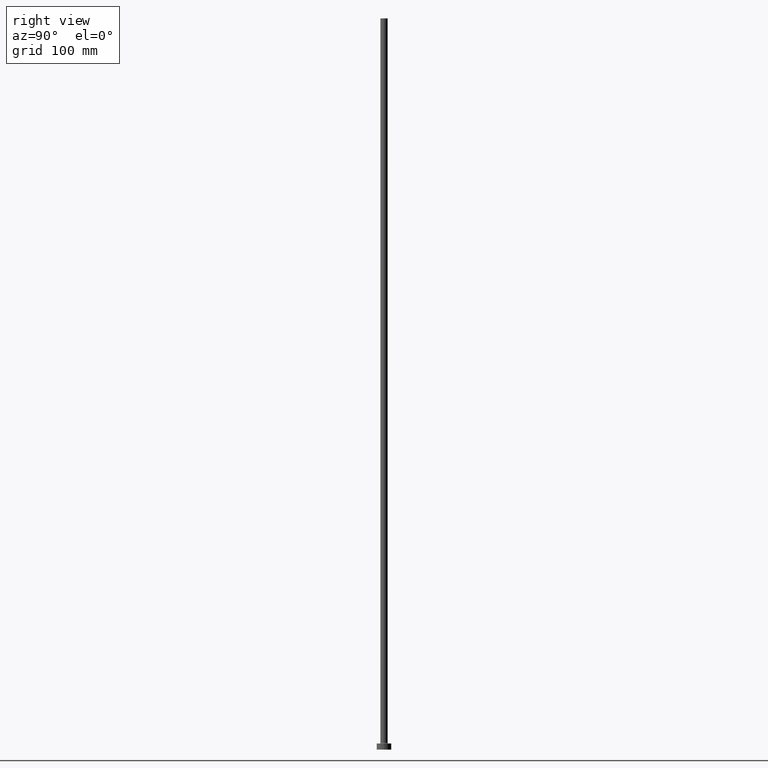
[diagram: clean part render]
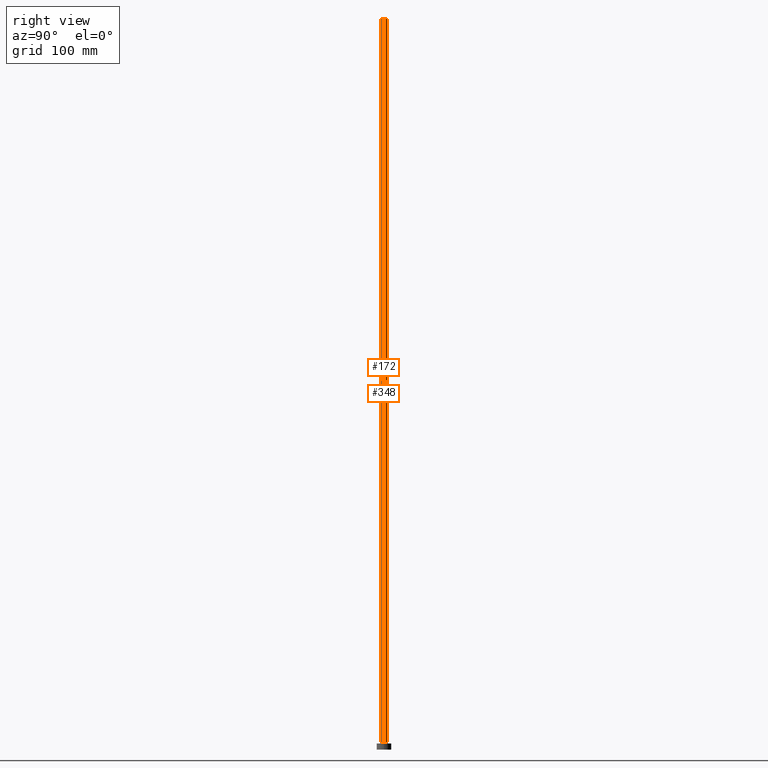
[diagram: same view with one multi-face feature highlighted, each face labeled with its STEP entity id]
A machine part, right view. The highlighted faces form ONE feature: a constant-radius fillet chain: 2 tangent blend faces with common blend radius 3 mm. The faces share edges in the B-rep.
Their STEP definitions:
[1] entity #348 (Cylinder):
#29 = DIRECTION ( 'NONE',  ( 0.000000000000000000, 0.000000000000000000, 1.000000000000000000 ) ) ;
#35 = EDGE_CURVE ( 'NONE', #57, #155, #200, .T. ) ;
#38 = CARTESIAN_POINT ( 'NONE',  ( 0.000000000000000000, 0.000000000000000000, 600.0000000000000000 ) ) ;
#57 = VERTEX_POINT ( 'NONE', #380 ) ;
#60 = CIRCLE ( 'NONE', #325, 3.000000000000000444 ) ;
#71 = LINE ( 'NONE', #301, #99 ) ;
#84 = FACE_OUTER_BOUND ( 'NONE', #231, .T. ) ;
#99 = VECTOR ( 'NONE', #206, 1000.000000000000000 ) ;
#101 = CARTESIAN_POINT ( 'NONE',  ( 0.000000000000000000, 0.000000000000000000, 600.0000000000000000 ) ) ;
#103 = DIRECTION ( 'NONE',  ( 1.000000000000000000, 0.000000000000000000, 0.000000000000000000 ) ) ;
#107 = EDGE_CURVE ( 'NONE', #366, #155, #71, .T. ) ;
#140 = EDGE_CURVE ( 'NONE', #424, #57, #411, .T. ) ;
#155 = VERTEX_POINT ( 'NONE', #187 ) ;
#163 = CARTESIAN_POINT ( 'NONE',  ( 3.000000000000000444, 3.673940397442060361E-16, 600.0000000000000000 ) ) ;
#167 = DIRECTION ( 'NONE',  ( -0.000000000000000000, -0.000000000000000000, -1.000000000000000000 ) ) ;
#177 = AXIS2_PLACEMENT_3D ( 'NONE', #406, #29, #306 ) ;
#187 = CARTESIAN_POINT ( 'NONE',  ( -3.000000000000000444, 0.000000000000000000, 5.499999999999949374 ) ) ;
#198 = ORIENTED_EDGE ( 'NONE', *, *, #107, .F. ) ;
#200 = CIRCLE ( 'NONE', #177, 3.000000000000000444 ) ;
#201 = AXIS2_PLACEMENT_3D ( 'NONE', #101, #415, #235 ) ;
#206 = DIRECTION ( 'NONE',  ( -0.000000000000000000, -0.000000000000000000, -1.000000000000000000 ) ) ;
#231 = EDGE_LOOP ( 'NONE', ( #324, #259, #278, #198 ) ) ;
#233 = CARTESIAN_POINT ( 'NONE',  ( -3.000000000000000444, 0.000000000000000000, 600.0000000000000000 ) ) ;
#235 = DIRECTION ( 'NONE',  ( -1.000000000000000000, 0.000000000000000000, 0.000000000000000000 ) ) ;
#259 = ORIENTED_EDGE ( 'NONE', *, *, #140, .T. ) ;
#278 = ORIENTED_EDGE ( 'NONE', *, *, #35, .T. ) ;
#301 = CARTESIAN_POINT ( 'NONE',  ( -3.000000000000000444, 0.000000000000000000, 600.0000000000000000 ) ) ;
#306 = DIRECTION ( 'NONE',  ( 1.000000000000000000, 0.000000000000000000, 0.000000000000000000 ) ) ;
#320 = CYLINDRICAL_SURFACE ( 'NONE', #201, 3.000000000000000444 ) ;
#324 = ORIENTED_EDGE ( 'NONE', *, *, #400, .F. ) ;
#325 = AXIS2_PLACEMENT_3D ( 'NONE', #38, #459, #103 ) ;
#348 = ADVANCED_FACE ( 'NONE', ( #84 ), #320, .T. ) ;
#366 = VERTEX_POINT ( 'NONE', #233 ) ;
#380 = CARTESIAN_POINT ( 'NONE',  ( 3.000000000000000444, 3.673940397442060361E-16, 5.499999999999949374 ) ) ;
#400 = EDGE_CURVE ( 'NONE', #424, #366, #60, .T. ) ;
#405 = CARTESIAN_POINT ( 'NONE',  ( 3.000000000000000444, 3.673940397442060361E-16, 600.0000000000000000 ) ) ;
#406 = CARTESIAN_POINT ( 'NONE',  ( 0.000000000000000000, 0.000000000000000000, 5.499999999999949374 ) ) ;
#411 = LINE ( 'NONE', #163, #450 ) ;
#415 = DIRECTION ( 'NONE',  ( -0.000000000000000000, -0.000000000000000000, -1.000000000000000000 ) ) ;
#424 = VERTEX_POINT ( 'NONE', #405 ) ;
#450 = VECTOR ( 'NONE', #167, 1000.000000000000000 ) ;
#459 = DIRECTION ( 'NONE',  ( 0.000000000000000000, 0.000000000000000000, 1.000000000000000000 ) ) ;
[2] entity #172 (Cylinder):
#17 = CARTESIAN_POINT ( 'NONE',  ( 0.000000000000000000, 0.000000000000000000, 5.499999999999949374 ) ) ;
#24 = CYLINDRICAL_SURFACE ( 'NONE', #146, 3.000000000000000444 ) ;
#54 = AXIS2_PLACEMENT_3D ( 'NONE', #17, #156, #290 ) ;
#57 = VERTEX_POINT ( 'NONE', #380 ) ;
#71 = LINE ( 'NONE', #301, #99 ) ;
#78 = CIRCLE ( 'NONE', #54, 3.000000000000000444 ) ;
#93 = DIRECTION ( 'NONE',  ( 0.000000000000000000, 0.000000000000000000, 1.000000000000000000 ) ) ;
#99 = VECTOR ( 'NONE', #206, 1000.000000000000000 ) ;
#107 = EDGE_CURVE ( 'NONE', #366, #155, #71, .T. ) ;
#118 = DIRECTION ( 'NONE',  ( -1.000000000000000000, 0.000000000000000000, 0.000000000000000000 ) ) ;
#128 = ORIENTED_EDGE ( 'NONE', *, *, #107, .T. ) ;
#140 = EDGE_CURVE ( 'NONE', #424, #57, #411, .T. ) ;
#146 = AXIS2_PLACEMENT_3D ( 'NONE', #283, #214, #118 ) ;
#153 = EDGE_CURVE ( 'NONE', #366, #424, #216, .T. ) ;
#155 = VERTEX_POINT ( 'NONE', #187 ) ;
#156 = DIRECTION ( 'NONE',  ( 0.000000000000000000, 0.000000000000000000, 1.000000000000000000 ) ) ;
#163 = CARTESIAN_POINT ( 'NONE',  ( 3.000000000000000444, 3.673940397442060361E-16, 600.0000000000000000 ) ) ;
#167 = DIRECTION ( 'NONE',  ( -0.000000000000000000, -0.000000000000000000, -1.000000000000000000 ) ) ;
#172 = ADVANCED_FACE ( 'NONE', ( #394 ), #24, .T. ) ;
#187 = CARTESIAN_POINT ( 'NONE',  ( -3.000000000000000444, 0.000000000000000000, 5.499999999999949374 ) ) ;
#190 = DIRECTION ( 'NONE',  ( 1.000000000000000000, 0.000000000000000000, 0.000000000000000000 ) ) ;
#191 = AXIS2_PLACEMENT_3D ( 'NONE', #263, #93, #190 ) ;
#195 = EDGE_CURVE ( 'NONE', #155, #57, #78, .T. ) ;
#206 = DIRECTION ( 'NONE',  ( -0.000000000000000000, -0.000000000000000000, -1.000000000000000000 ) ) ;
#214 = DIRECTION ( 'NONE',  ( -0.000000000000000000, -0.000000000000000000, -1.000000000000000000 ) ) ;
#216 = CIRCLE ( 'NONE', #191, 3.000000000000000444 ) ;
#233 = CARTESIAN_POINT ( 'NONE',  ( -3.000000000000000444, 0.000000000000000000, 600.0000000000000000 ) ) ;
#263 = CARTESIAN_POINT ( 'NONE',  ( 0.000000000000000000, 0.000000000000000000, 600.0000000000000000 ) ) ;
#283 = CARTESIAN_POINT ( 'NONE',  ( 0.000000000000000000, 0.000000000000000000, 600.0000000000000000 ) ) ;
#290 = DIRECTION ( 'NONE',  ( 1.000000000000000000, 0.000000000000000000, 0.000000000000000000 ) ) ;
#301 = CARTESIAN_POINT ( 'NONE',  ( -3.000000000000000444, 0.000000000000000000, 600.0000000000000000 ) ) ;
#356 = ORIENTED_EDGE ( 'NONE', *, *, #153, .F. ) ;
#366 = VERTEX_POINT ( 'NONE', #233 ) ;
#379 = EDGE_LOOP ( 'NONE', ( #428, #356, #128, #447 ) ) ;
#380 = CARTESIAN_POINT ( 'NONE',  ( 3.000000000000000444, 3.673940397442060361E-16, 5.499999999999949374 ) ) ;
#394 = FACE_OUTER_BOUND ( 'NONE', #379, .T. ) ;
#405 = CARTESIAN_POINT ( 'NONE',  ( 3.000000000000000444, 3.673940397442060361E-16, 600.0000000000000000 ) ) ;
#411 = LINE ( 'NONE', #163, #450 ) ;
#424 = VERTEX_POINT ( 'NONE', #405 ) ;
#428 = ORIENTED_EDGE ( 'NONE', *, *, #140, .F. ) ;
#447 = ORIENTED_EDGE ( 'NONE', *, *, #195, .T. ) ;
#450 = VECTOR ( 'NONE', #167, 1000.000000000000000 ) ;